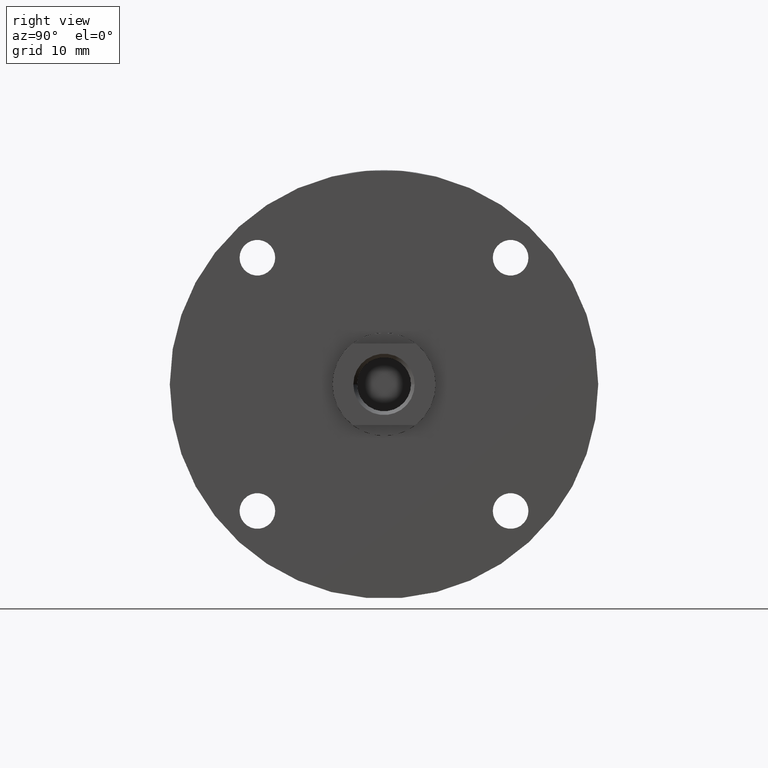
[diagram: clean part render]
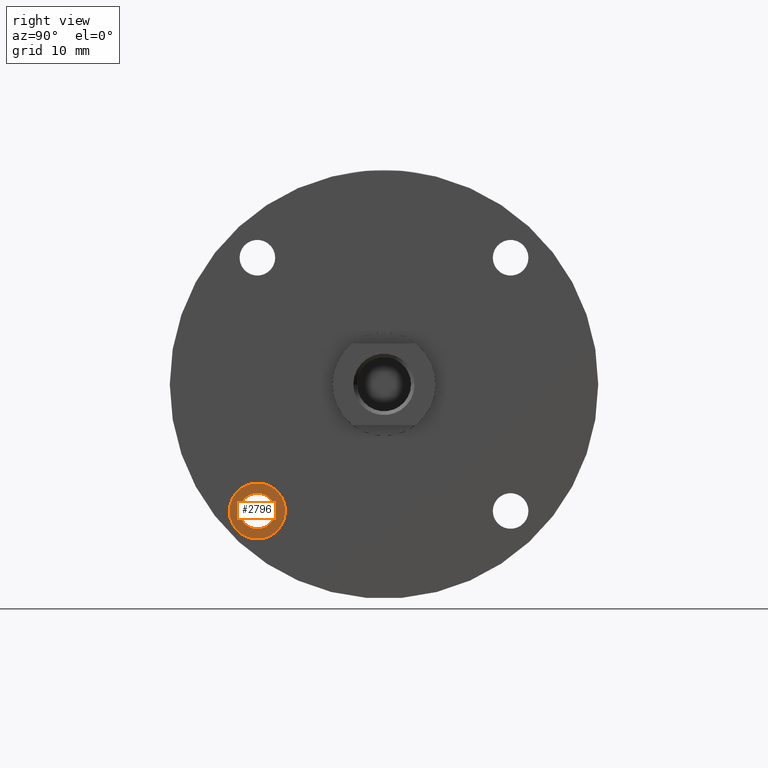
[diagram: same view with one face highlighted and labeled with its STEP entity id]
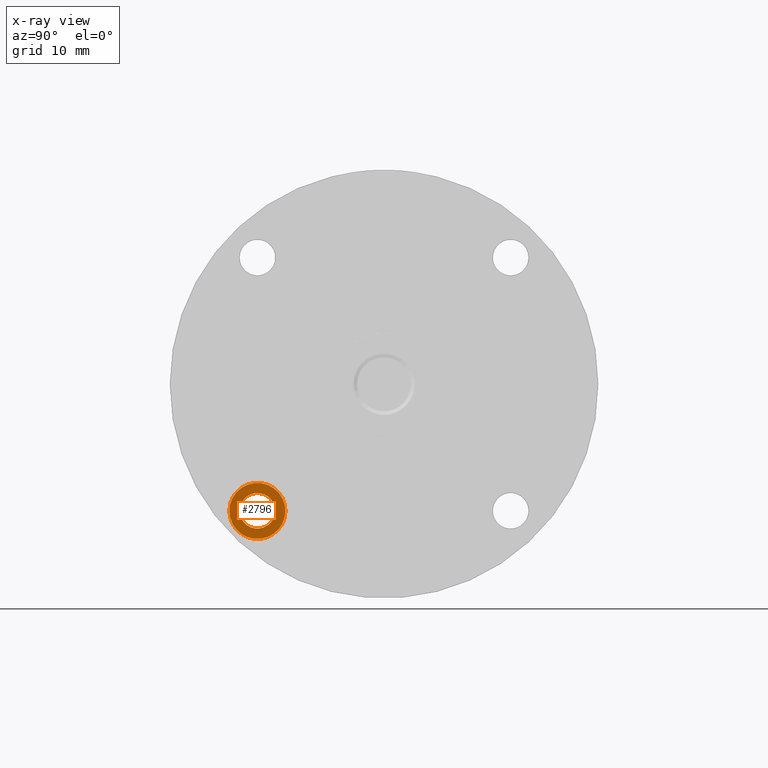
[diagram: x-ray of the same camera — body ghosted, the highlighted face saturated]
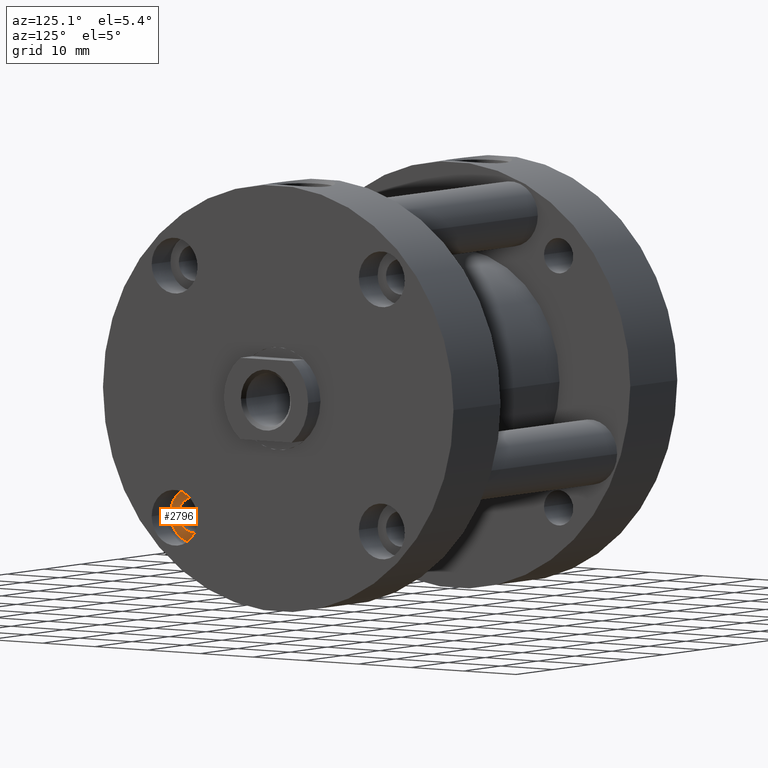
[diagram: same view with one face highlighted and labeled with its STEP entity id]
A machine part, right view. The second image highlights one B-rep face of the part: STEP entity #2796.
The next image is the same camera in x-ray: the body ghosted, the highlighted face saturated — about 0% of this face is hidden behind the body in this view.
A second angle (auxiliary view) of the same face is appended — the face is thin or edge-on in the first view.
In plain terms, the highlighted planar face has unit normal (-1, 0, 0).
Its self-contained STEP definition (entity closure, byte-faithful):
#9 = DIRECTION ( 'NONE',  ( 0.0000000000000000000, -1.000000000000000000, 0.0000000000000000000 ) ) ;
#51 = ORIENTED_EDGE ( 'NONE', *, *, #437, .F. ) ;
#149 = DIRECTION ( 'NONE',  ( -0.0000000000000000000, 1.000000000000000000, -0.0000000000000000000 ) ) ;
#228 = AXIS2_PLACEMENT_3D ( 'NONE', #1760, #9, #2474 ) ;
#437 = EDGE_CURVE ( 'NONE', #2152, #1625, #3613, .T. ) ;
#641 = CARTESIAN_POINT ( 'NONE',  ( 0.7742819253992521100, 0.3000000000000001000, 0.7742819253992521100 ) ) ;
#812 = CARTESIAN_POINT ( 'NONE',  ( 0.7742819253992521100, 0.3000000000000001000, 0.6652819253992515700 ) ) ;
#848 = AXIS2_PLACEMENT_3D ( 'NONE', #1153, #3630, #1490 ) ;
#1003 = DIRECTION ( 'NONE',  ( 0.0000000000000000000, 0.0000000000000000000, 1.000000000000000000 ) ) ;
#1039 = CIRCLE ( 'NONE', #3254, 0.1715000000000004900 ) ;
#1153 = CARTESIAN_POINT ( 'NONE',  ( 0.7742819253992521100, 0.3000000000000001000, 0.7742819253992521100 ) ) ;
#1203 = CIRCLE ( 'NONE', #2914, 0.1715000000000004900 ) ;
#1213 = EDGE_CURVE ( 'NONE', #3217, #4548, #1203, .T. ) ;
#1217 = FACE_OUTER_BOUND ( 'NONE', #1810, .T. ) ;
#1490 = DIRECTION ( 'NONE',  ( 0.0000000000000000000, 0.0000000000000000000, 1.000000000000000000 ) ) ;
#1613 = EDGE_LOOP ( 'NONE', ( #3435, #51 ) ) ;
#1625 = VERTEX_POINT ( 'NONE', #2658 ) ;
#1659 = DIRECTION ( 'NONE',  ( -0.0000000000000000000, 1.000000000000000000, -0.0000000000000000000 ) ) ;
#1749 = EDGE_CURVE ( 'NONE', #1625, #2152, #3184, .T. ) ;
#1760 = CARTESIAN_POINT ( 'NONE',  ( 0.8832819253992526500, 0.3000000000000001000, 0.7742819253992521100 ) ) ;
#1810 = EDGE_LOOP ( 'NONE', ( #3708, #2119 ) ) ;
#2119 = ORIENTED_EDGE ( 'NONE', *, *, #2508, .T. ) ;
#2152 = VERTEX_POINT ( 'NONE', #812 ) ;
#2171 = CARTESIAN_POINT ( 'NONE',  ( 0.7742819253992521100, 0.3000000000000001000, 0.6027819253992515700 ) ) ;
#2258 = CARTESIAN_POINT ( 'NONE',  ( 0.7742819253992521100, 0.3000000000000001000, 0.7742819253992521100 ) ) ;
#2474 = DIRECTION ( 'NONE',  ( 0.0000000000000000000, -0.0000000000000000000, -1.000000000000000000 ) ) ;
#2508 = EDGE_CURVE ( 'NONE', #4548, #3217, #1039, .T. ) ;
#2618 = DIRECTION ( 'NONE',  ( 0.0000000000000000000, 0.0000000000000000000, 1.000000000000000000 ) ) ;
#2658 = CARTESIAN_POINT ( 'NONE',  ( 0.7742819253992521100, 0.3000000000000001000, 0.8832819253992526500 ) ) ;
#2796 = ADVANCED_FACE ( 'PLANAR_4', ( #3079, #1217 ), #3173, .F. ) ;
#2881 = AXIS2_PLACEMENT_3D ( 'NONE', #641, #3117, #1003 ) ;
#2914 = AXIS2_PLACEMENT_3D ( 'NONE', #3801, #1659, #4149 ) ;
#3079 = FACE_BOUND ( 'NONE', #1613, .T. ) ;
#3117 = DIRECTION ( 'NONE',  ( -0.0000000000000000000, 1.000000000000000000, -0.0000000000000000000 ) ) ;
#3173 = PLANE ( 'NONE',  #228 ) ;
#3184 = CIRCLE ( 'NONE', #848, 0.1090000000000005300 ) ;
#3217 = VERTEX_POINT ( 'NONE', #3897 ) ;
#3254 = AXIS2_PLACEMENT_3D ( 'NONE', #2258, #149, #2618 ) ;
#3435 = ORIENTED_EDGE ( 'NONE', *, *, #1749, .F. ) ;
#3613 = CIRCLE ( 'NONE', #2881, 0.1090000000000005300 ) ;
#3630 = DIRECTION ( 'NONE',  ( -0.0000000000000000000, 1.000000000000000000, -0.0000000000000000000 ) ) ;
#3708 = ORIENTED_EDGE ( 'NONE', *, *, #1213, .T. ) ;
#3801 = CARTESIAN_POINT ( 'NONE',  ( 0.7742819253992521100, 0.3000000000000001000, 0.7742819253992521100 ) ) ;
#3897 = CARTESIAN_POINT ( 'NONE',  ( 0.7742819253992521100, 0.3000000000000001000, 0.9457819253992525400 ) ) ;
#4149 = DIRECTION ( 'NONE',  ( 0.0000000000000000000, 0.0000000000000000000, 1.000000000000000000 ) ) ;
#4548 = VERTEX_POINT ( 'NONE', #2171 ) ;